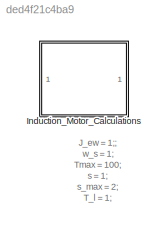
MODEL slx_ded4f21c4ba9
KIND model
CONFIG AbsTol = auto
CONFIG EnableMultiTasking = off
CONFIG FixedStep = auto
CONFIG MaxStep = auto
CONFIG MinStep = auto
CONFIG PreLoadFcn = init; 
CONFIG RelTol = 1e-3
CONFIG SampleTimeConstraint = Unconstrained
CONFIG SolverName = VariableStepAuto
CONFIG StartTime = 0.0
CONFIG StopTime = 10.0
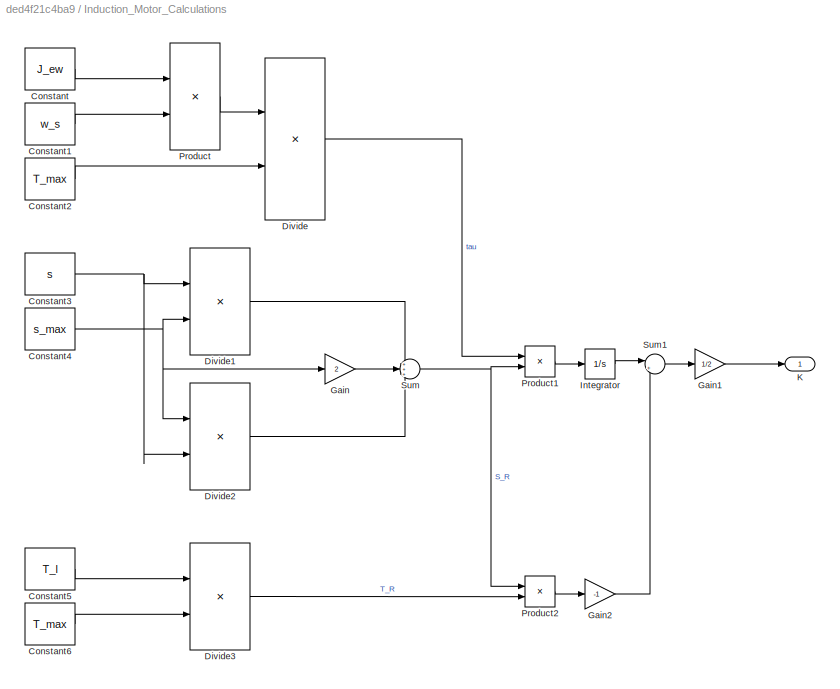
BLOCK [SubSystem] Induction_Motor_Calculations
BLOCK [Constant] Induction_Motor_Calculations/Constant
  Value = J_ew
BLOCK [Constant] Induction_Motor_Calculations/Constant1
  Value = w_s
BLOCK [Constant] Induction_Motor_Calculations/Constant2
  Value = T_max
BLOCK [Constant] Induction_Motor_Calculations/Constant3
  Value = s
BLOCK [Constant] Induction_Motor_Calculations/Constant4
  Value = s_max
BLOCK [Constant] Induction_Motor_Calculations/Constant5
  Value = T_l
BLOCK [Constant] Induction_Motor_Calculations/Constant6
  Value = T_max
BLOCK [Product] Induction_Motor_Calculations/Divide
  Inputs = */
BLOCK [Product] Induction_Motor_Calculations/Divide1
  Inputs = */
BLOCK [Product] Induction_Motor_Calculations/Divide2
  Inputs = */
BLOCK [Product] Induction_Motor_Calculations/Divide3
  Inputs = */
BLOCK [Gain] Induction_Motor_Calculations/Gain
  Gain = 2
BLOCK [Gain] Induction_Motor_Calculations/Gain1
  Gain = 1/2
BLOCK [Gain] Induction_Motor_Calculations/Gain2
  Gain = -1
BLOCK [Integrator] Induction_Motor_Calculations/Integrator
BLOCK [Outport] Induction_Motor_Calculations/K
BLOCK [Product] Induction_Motor_Calculations/Product
BLOCK [Product] Induction_Motor_Calculations/Product1
BLOCK [Product] Induction_Motor_Calculations/Product2
BLOCK [Sum] Induction_Motor_Calculations/Sum
  Inputs = +++
BLOCK [Sum] Induction_Motor_Calculations/Sum1
  Inputs = |++
ANNOTATION (root): J_ew = 1;; w_s = 1; Tmax = 100; s = 1; s_max = 2; T_l = 1; T_max = 200; % tau = 1;
LINE Induction_Motor_Calculations/Constant1:1 -> Induction_Motor_Calculations/Product:2
LINE Induction_Motor_Calculations/Constant2:1 -> Induction_Motor_Calculations/Divide:2
NET Induction_Motor_Calculations/Constant3:1 -> Induction_Motor_Calculations/Divide1:1, Induction_Motor_Calculations/Divide2:2
NET Induction_Motor_Calculations/Constant4:1 -> Induction_Motor_Calculations/Divide1:2, Induction_Motor_Calculations/Divide2:1, Induction_Motor_Calculations/Gain:1
LINE Induction_Motor_Calculations/Constant5:1 -> Induction_Motor_Calculations/Divide3:1
LINE Induction_Motor_Calculations/Constant6:1 -> Induction_Motor_Calculations/Divide3:2
LINE Induction_Motor_Calculations/Constant:1 -> Induction_Motor_Calculations/Product:1
LINE Induction_Motor_Calculations/Divide1:1 -> Induction_Motor_Calculations/Sum:1
LINE Induction_Motor_Calculations/Divide2:1 -> Induction_Motor_Calculations/Sum:3
LINE Induction_Motor_Calculations/Divide3:1 -> Induction_Motor_Calculations/Product2:2
LINE Induction_Motor_Calculations/Divide:1 -> Induction_Motor_Calculations/Product1:1
LINE Induction_Motor_Calculations/Gain1:1 -> Induction_Motor_Calculations/K:1
LINE Induction_Motor_Calculations/Gain2:1 -> Induction_Motor_Calculations/Sum1:2
LINE Induction_Motor_Calculations/Gain:1 -> Induction_Motor_Calculations/Sum:2
LINE Induction_Motor_Calculations/Integrator:1 -> Induction_Motor_Calculations/Sum1:1
LINE Induction_Motor_Calculations/Product1:1 -> Induction_Motor_Calculations/Integrator:1
LINE Induction_Motor_Calculations/Product2:1 -> Induction_Motor_Calculations/Gain2:1
LINE Induction_Motor_Calculations/Product:1 -> Induction_Motor_Calculations/Divide:1
LINE Induction_Motor_Calculations/Sum1:1 -> Induction_Motor_Calculations/Gain1:1
NET Induction_Motor_Calculations/Sum:1 -> Induction_Motor_Calculations/Product1:2, Induction_Motor_Calculations/Product2:1
note: NET lines group one-source signal fan-out (src -> all destinations, sorted); 1:1 wires keep LINE
